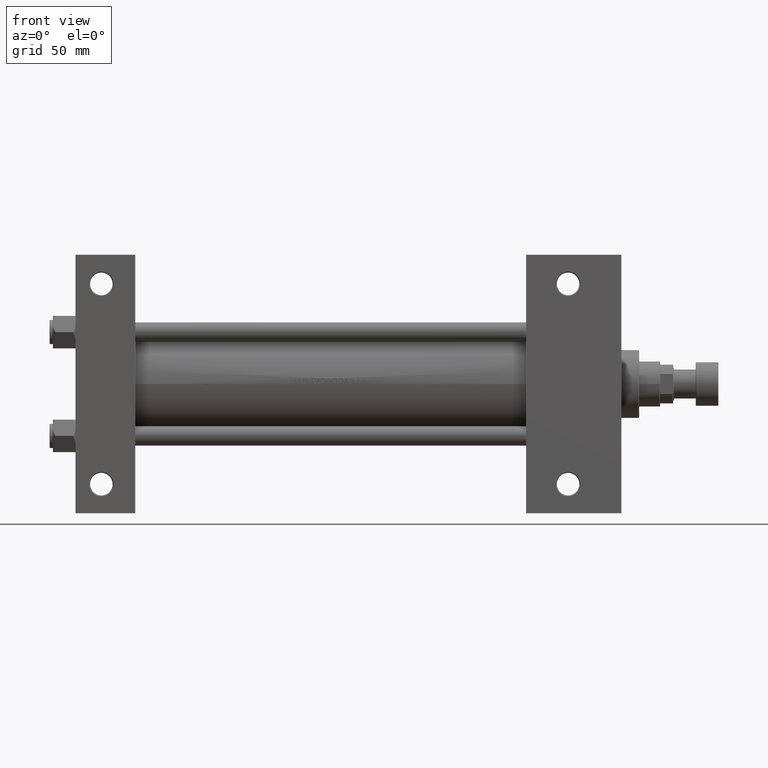
[diagram: clean part render]
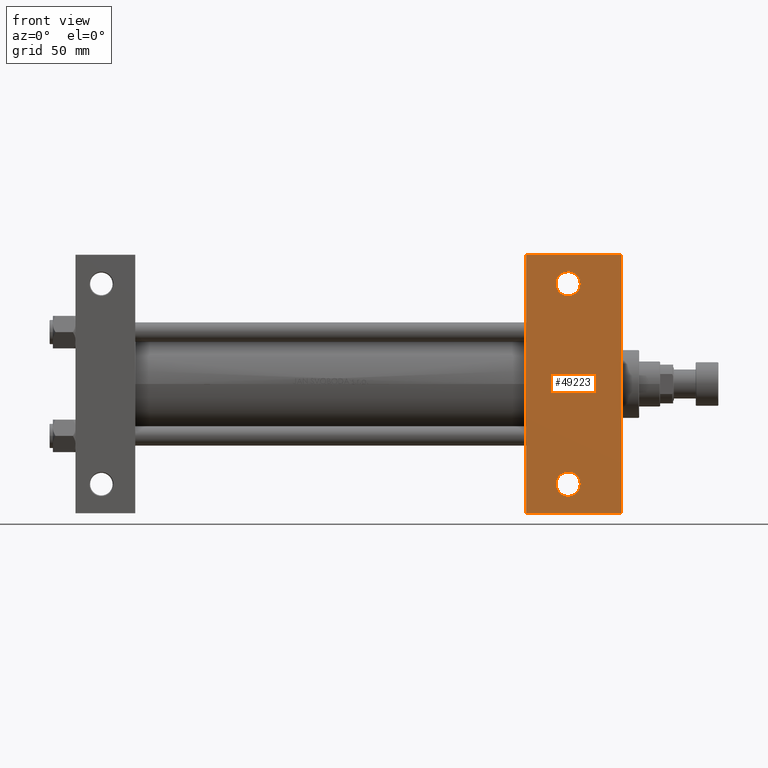
[diagram: same view with one face highlighted and labeled with its STEP entity id]
A machine part, front view. The second image highlights one B-rep face of the part: STEP entity #49223.
In plain terms, the highlighted planar face has unit normal (0, -1, 0).
Its self-contained STEP definition (entity closure, byte-faithful):
#91 = VERTEX_POINT ( 'NONE', #41981 ) ;
#126 = FACE_BOUND ( 'NONE', #12874, .T. ) ;
#784 = EDGE_CURVE ( 'NONE', #39574, #91, #12595, .T. ) ;
#1005 = CARTESIAN_POINT ( 'NONE',  ( 278.9999999999999432, 79.99999999999995737, -45.00000000000000000 ) ) ;
#1260 = DIRECTION ( 'NONE',  ( -0.000000000000000000, -0.000000000000000000, 1.000000000000000000 ) ) ;
#2271 = EDGE_CURVE ( 'NONE', #4752, #16448, #49158, .T. ) ;
#2896 = AXIS2_PLACEMENT_3D ( 'NONE', #41496, #45306, #33184 ) ;
#2897 = LINE ( 'NONE', #18117, #15844 ) ;
#3552 = CARTESIAN_POINT ( 'NONE',  ( 312.4994999999999550, -62.00000000000000000, -45.00000000000000000 ) ) ;
#4672 = EDGE_CURVE ( 'NONE', #4752, #41553, #4815, .T. ) ;
#4717 = ORIENTED_EDGE ( 'NONE', *, *, #4672, .T. ) ;
#4752 = VERTEX_POINT ( 'NONE', #5821 ) ;
#4815 = LINE ( 'NONE', #1005, #44179 ) ;
#5311 = EDGE_CURVE ( 'NONE', #20693, #16448, #2897, .T. ) ;
#5344 = DIRECTION ( 'NONE',  ( 0.000000000000000000, -1.000000000000000000, 0.000000000000000000 ) ) ;
#5821 = CARTESIAN_POINT ( 'NONE',  ( 278.9999999999999432, 79.99999999999995737, -45.00000000000000000 ) ) ;
#7584 = AXIS2_PLACEMENT_3D ( 'NONE', #23647, #46975, #26954 ) ;
#8252 = ORIENTED_EDGE ( 'NONE', *, *, #12101, .T. ) ;
#11207 = ORIENTED_EDGE ( 'NONE', *, *, #29057, .T. ) ;
#12101 = EDGE_CURVE ( 'NONE', #21886, #14983, #16103, .T. ) ;
#12595 = CIRCLE ( 'NONE', #2896, 7.499499999999937216 ) ;
#12806 = AXIS2_PLACEMENT_3D ( 'NONE', #31952, #1260, #27872 ) ;
#12874 = EDGE_LOOP ( 'NONE', ( #11207, #8252 ) ) ;
#13376 = CARTESIAN_POINT ( 'NONE',  ( 337.9999999999999432, 79.99999999999998579, -45.00000000000000000 ) ) ;
#14983 = VERTEX_POINT ( 'NONE', #23902 ) ;
#15589 = CARTESIAN_POINT ( 'NONE',  ( 337.9999999999999432, 45.00000000000001421, -45.00000000000000000 ) ) ;
#15844 = VECTOR ( 'NONE', #45710, 1000.000000000000000 ) ;
#16103 = CIRCLE ( 'NONE', #41200, 7.499499999999992284 ) ;
#16448 = VERTEX_POINT ( 'NONE', #23210 ) ;
#17322 = CIRCLE ( 'NONE', #7584, 7.499499999999992284 ) ;
#18117 = CARTESIAN_POINT ( 'NONE',  ( 278.9999999999999432, -80.00000000000001421, -45.00000000000000000 ) ) ;
#18982 = CARTESIAN_POINT ( 'NONE',  ( 278.9999999999999432, 45.00000000000001421, -45.00000000000000000 ) ) ;
#20546 = CARTESIAN_POINT ( 'NONE',  ( 337.9999999999999432, 45.00000000000001421, -45.00000000000000000 ) ) ;
#20693 = VERTEX_POINT ( 'NONE', #24204 ) ;
#21886 = VERTEX_POINT ( 'NONE', #3552 ) ;
#22094 = CARTESIAN_POINT ( 'NONE',  ( 304.9999999999999432, -62.00000000000000000, -45.00000000000000000 ) ) ;
#22155 = ORIENTED_EDGE ( 'NONE', *, *, #2271, .F. ) ;
#23210 = CARTESIAN_POINT ( 'NONE',  ( 278.9999999999999432, -80.00000000000001421, -45.00000000000000000 ) ) ;
#23647 = CARTESIAN_POINT ( 'NONE',  ( 304.9999999999999432, -62.00000000000000000, -45.00000000000000000 ) ) ;
#23902 = CARTESIAN_POINT ( 'NONE',  ( 297.5004999999999313, -62.00000000000000000, -45.00000000000000000 ) ) ;
#24185 = ORIENTED_EDGE ( 'NONE', *, *, #784, .T. ) ;
#24204 = CARTESIAN_POINT ( 'NONE',  ( 337.9999999999999432, -80.00000000000004263, -45.00000000000000000 ) ) ;
#25863 = CIRCLE ( 'NONE', #12806, 7.499499999999937216 ) ;
#26954 = DIRECTION ( 'NONE',  ( -1.000000000000000000, 0.000000000000000000, 0.000000000000000000 ) ) ;
#27008 = ORIENTED_EDGE ( 'NONE', *, *, #29398, .T. ) ;
#27872 = DIRECTION ( 'NONE',  ( -1.000000000000000000, 0.000000000000000000, 0.000000000000000000 ) ) ;
#28002 = DIRECTION ( 'NONE',  ( -1.000000000000000000, 0.000000000000000000, -0.000000000000000000 ) ) ;
#28127 = DIRECTION ( 'NONE',  ( 1.000000000000000000, 4.704334850106595794E-16, 0.000000000000000000 ) ) ;
#28394 = CARTESIAN_POINT ( 'NONE',  ( 297.5005000000000450, 62.00000000000000711, -45.00000000000000000 ) ) ;
#29057 = EDGE_CURVE ( 'NONE', #14983, #21886, #17322, .T. ) ;
#29398 = EDGE_CURVE ( 'NONE', #41553, #20693, #47931, .T. ) ;
#29659 = DIRECTION ( 'NONE',  ( 0.000000000000000000, -1.000000000000000000, 0.000000000000000000 ) ) ;
#30818 = PLANE ( 'NONE',  #42893 ) ;
#31952 = CARTESIAN_POINT ( 'NONE',  ( 305.0000000000000000, 62.00000000000000711, -45.00000000000000000 ) ) ;
#33184 = DIRECTION ( 'NONE',  ( -1.000000000000000000, 0.000000000000000000, 0.000000000000000000 ) ) ;
#34314 = EDGE_LOOP ( 'NONE', ( #24185, #42658 ) ) ;
#37326 = DIRECTION ( 'NONE',  ( -0.000000000000000000, -0.000000000000000000, 1.000000000000000000 ) ) ;
#37561 = DIRECTION ( 'NONE',  ( -1.000000000000000000, 0.000000000000000000, 0.000000000000000000 ) ) ;
#39170 = VECTOR ( 'NONE', #5344, 1000.000000000000000 ) ;
#39528 = EDGE_CURVE ( 'NONE', #91, #39574, #25863, .T. ) ;
#39574 = VERTEX_POINT ( 'NONE', #28394 ) ;
#41200 = AXIS2_PLACEMENT_3D ( 'NONE', #22094, #37326, #37561 ) ;
#41496 = CARTESIAN_POINT ( 'NONE',  ( 305.0000000000000000, 62.00000000000000711, -45.00000000000000000 ) ) ;
#41553 = VERTEX_POINT ( 'NONE', #13376 ) ;
#41981 = CARTESIAN_POINT ( 'NONE',  ( 312.4994999999999550, 62.00000000000000711, -45.00000000000000000 ) ) ;
#42440 = FACE_BOUND ( 'NONE', #34314, .T. ) ;
#42658 = ORIENTED_EDGE ( 'NONE', *, *, #39528, .T. ) ;
#42688 = DIRECTION ( 'NONE',  ( 0.000000000000000000, 0.000000000000000000, -1.000000000000000000 ) ) ;
#42893 = AXIS2_PLACEMENT_3D ( 'NONE', #15589, #42688, #28002 ) ;
#44179 = VECTOR ( 'NONE', #28127, 1000.000000000000000 ) ;
#45306 = DIRECTION ( 'NONE',  ( -0.000000000000000000, -0.000000000000000000, 1.000000000000000000 ) ) ;
#45710 = DIRECTION ( 'NONE',  ( -1.000000000000000000, 4.704334850106595794E-16, -0.000000000000000000 ) ) ;
#46975 = DIRECTION ( 'NONE',  ( -0.000000000000000000, -0.000000000000000000, 1.000000000000000000 ) ) ;
#47377 = VECTOR ( 'NONE', #29659, 1000.000000000000000 ) ;
#47931 = LINE ( 'NONE', #20546, #39170 ) ;
#49131 = EDGE_LOOP ( 'NONE', ( #22155, #4717, #27008, #49727 ) ) ;
#49158 = LINE ( 'NONE', #18982, #47377 ) ;
#49223 = ADVANCED_FACE ( 'NONE', ( #42440, #126, #49806 ), #30818, .T. ) ;
#49727 = ORIENTED_EDGE ( 'NONE', *, *, #5311, .T. ) ;
#49806 = FACE_OUTER_BOUND ( 'NONE', #49131, .T. ) ;